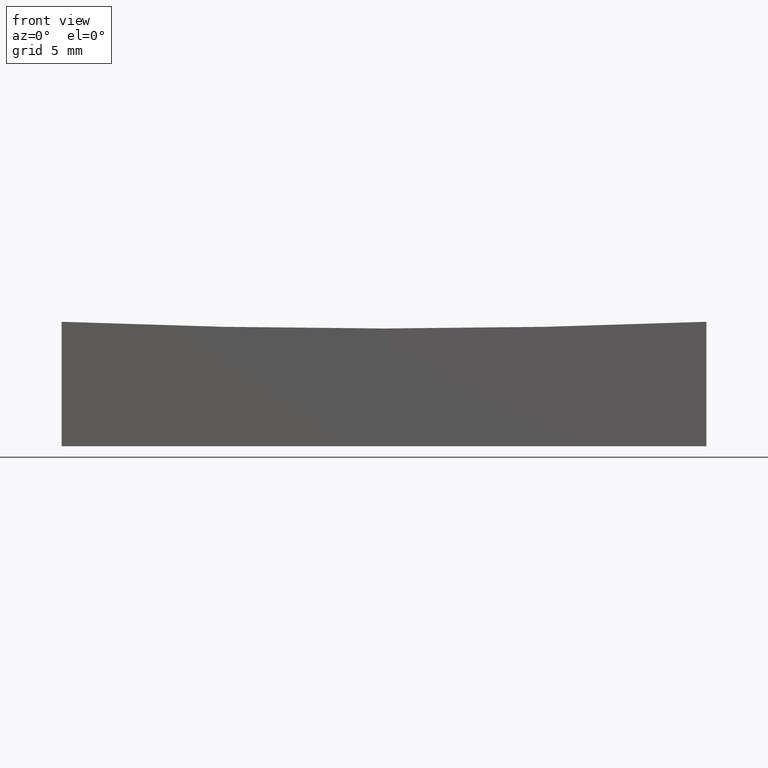
[diagram: clean part render]
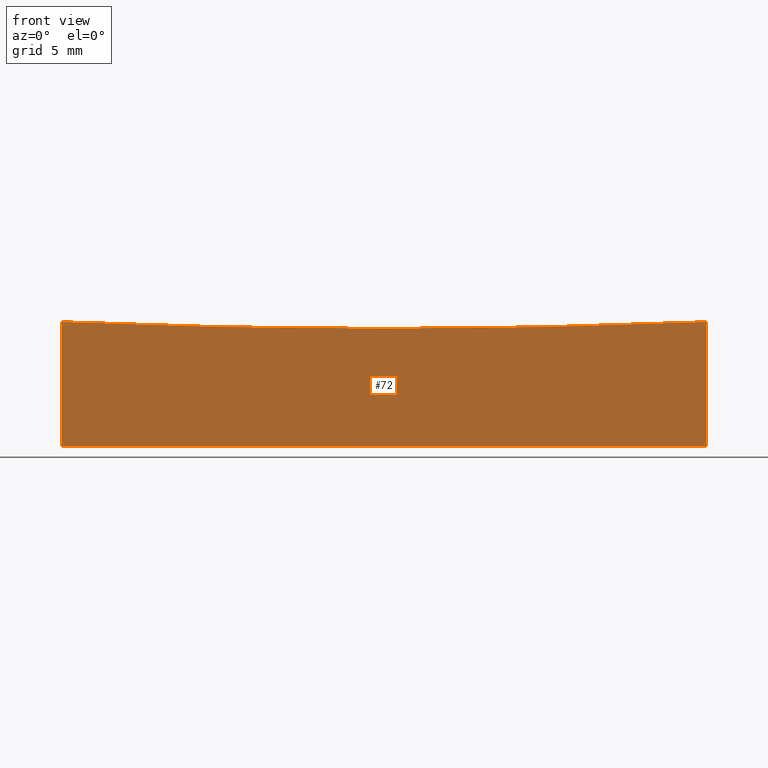
[diagram: same view with one face highlighted and labeled with its STEP entity id]
A machine part, front view. The second image highlights one B-rep face of the part: STEP entity #72.
In plain terms, the highlighted planar face has unit normal (0, 1, 0).
Its self-contained STEP definition (entity closure, byte-faithful):
#4 = DIRECTION ( 'NONE',  ( -0.000000000000000000, -1.000000000000000000, -0.000000000000000000 ) ) ;
#11 = PLANE ( 'NONE',  #234 ) ;
#29 = FACE_OUTER_BOUND ( 'NONE', #225, .T. ) ;
#34 = EDGE_CURVE ( 'NONE', #81, #182, #212, .T. ) ;
#37 = VECTOR ( 'NONE', #170, 1000.000000000000000 ) ;
#38 = CARTESIAN_POINT ( 'NONE',  ( -24.99999999999998934, -12.49999999999999645, 9.651395263157391824 ) ) ;
#41 = DIRECTION ( 'NONE',  ( -0.000000000000000000, -0.000000000000000000, -1.000000000000000000 ) ) ;
#44 = ORIENTED_EDGE ( 'NONE', *, *, #34, .T. ) ;
#53 = CIRCLE ( 'NONE', #198, 599.8697775350914299 ) ;
#62 = VERTEX_POINT ( 'NONE', #107 ) ;
#72 = ADVANCED_FACE ( 'NONE', ( #29 ), #11, .F. ) ;
#76 = DIRECTION ( 'NONE',  ( 1.776356839400250149E-14, 0.000000000000000000, 1.000000000000000000 ) ) ;
#81 = VERTEX_POINT ( 'NONE', #149 ) ;
#85 = CARTESIAN_POINT ( 'NONE',  ( -24.99999999999999645, -12.50000000000000000, 15.00000000000000000 ) ) ;
#98 = CARTESIAN_POINT ( 'NONE',  ( 24.99999999999999645, -12.50000000000000000, 15.00000000000000000 ) ) ;
#105 = CARTESIAN_POINT ( 'NONE',  ( -24.99999999999999645, -12.50000000000000000, 0.000000000000000000 ) ) ;
#107 = CARTESIAN_POINT ( 'NONE',  ( 24.99999999999999645, -12.50000000000000000, 9.651395263157391824 ) ) ;
#117 = EDGE_CURVE ( 'NONE', #62, #182, #221, .T. ) ;
#122 = EDGE_CURVE ( 'NONE', #166, #81, #200, .T. ) ;
#124 = CARTESIAN_POINT ( 'NONE',  ( -24.99999999999999645, -12.50000000000000000, 15.00000000000000000 ) ) ;
#149 = CARTESIAN_POINT ( 'NONE',  ( -24.99999999999999645, -12.50000000000000000, 0.000000000000000000 ) ) ;
#156 = EDGE_CURVE ( 'NONE', #166, #62, #53, .T. ) ;
#166 = VERTEX_POINT ( 'NONE', #38 ) ;
#170 = DIRECTION ( 'NONE',  ( 1.000000000000000000, 0.000000000000000000, 0.000000000000000000 ) ) ;
#175 = ORIENTED_EDGE ( 'NONE', *, *, #117, .F. ) ;
#179 = DIRECTION ( 'NONE',  ( -0.000000000000000000, -0.000000000000000000, -1.000000000000000000 ) ) ;
#180 = CARTESIAN_POINT ( 'NONE',  ( 0.000000000000000000, -12.49999999999999645, 609.0000000000000000 ) ) ;
#182 = VERTEX_POINT ( 'NONE', #205 ) ;
#186 = DIRECTION ( 'NONE',  ( 0.000000000000000000, 1.000000000000000000, 0.000000000000000000 ) ) ;
#191 = VECTOR ( 'NONE', #41, 1000.000000000000000 ) ;
#198 = AXIS2_PLACEMENT_3D ( 'NONE', #180, #4, #76 ) ;
#200 = LINE ( 'NONE', #124, #224 ) ;
#203 = ORIENTED_EDGE ( 'NONE', *, *, #122, .T. ) ;
#205 = CARTESIAN_POINT ( 'NONE',  ( 24.99999999999999645, -12.50000000000000000, 0.000000000000000000 ) ) ;
#212 = LINE ( 'NONE', #105, #37 ) ;
#221 = LINE ( 'NONE', #98, #191 ) ;
#224 = VECTOR ( 'NONE', #179, 1000.000000000000000 ) ;
#225 = EDGE_LOOP ( 'NONE', ( #243, #203, #44, #175 ) ) ;
#234 = AXIS2_PLACEMENT_3D ( 'NONE', #85, #186, #247 ) ;
#243 = ORIENTED_EDGE ( 'NONE', *, *, #156, .F. ) ;
#247 = DIRECTION ( 'NONE',  ( 0.000000000000000000, -0.000000000000000000, 1.000000000000000000 ) ) ;